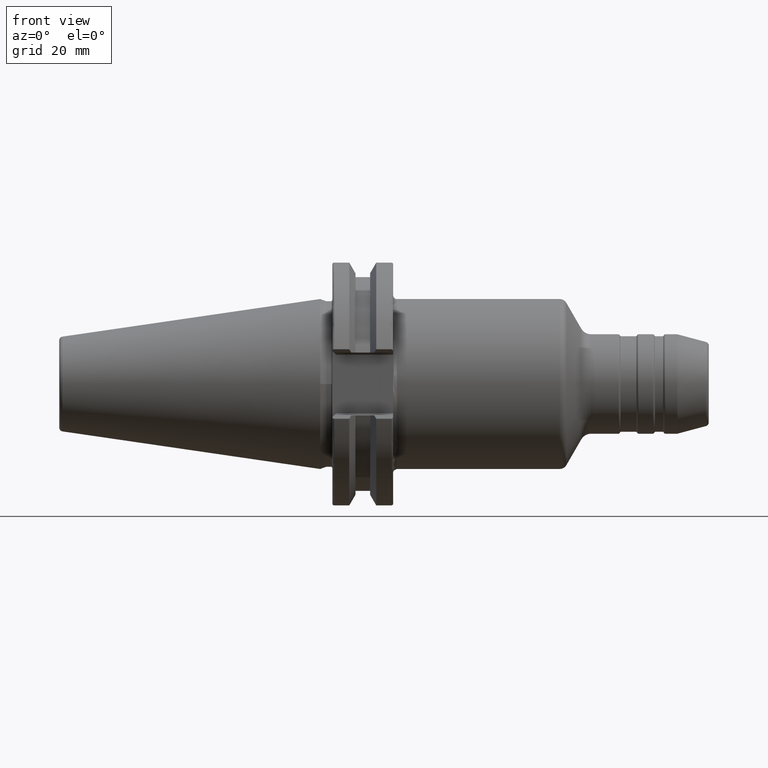
[diagram: clean part render]
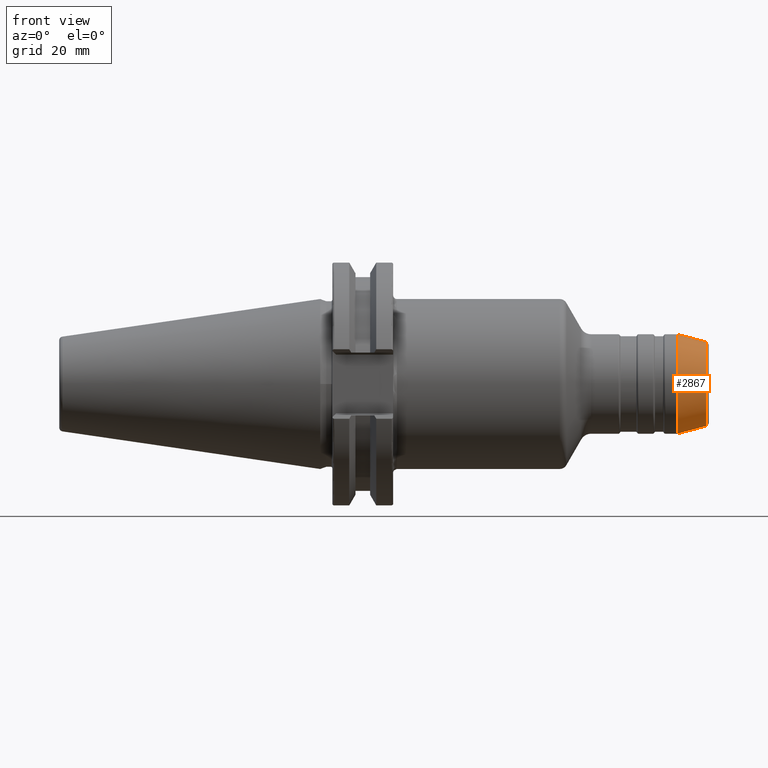
[diagram: same view with one face highlighted and labeled with its STEP entity id]
A machine part, front view. The second image highlights one B-rep face of the part: STEP entity #2867.
In plain terms, the highlighted conical surface has half-angle 15 deg.
Its self-contained STEP definition (entity closure, byte-faithful):
#650=CARTESIAN_POINT('',(9.354165477087E1,0.E0,0.E0));
#651=DIRECTION('',(-1.E0,0.E0,0.E0));
#652=DIRECTION('',(0.E0,0.E0,-1.E0));
#653=AXIS2_PLACEMENT_3D('',#650,#651,#652);
#655=DIRECTION('',(-9.659258262891E-1,0.E0,-2.588190451026E-1));
#656=VECTOR('',#655,7.601167785775E0);
#657=CARTESIAN_POINT('',(1.008838190451E2,0.E0,-1.099859883831E1));
#658=LINE('',#657,#656);
#659=DIRECTION('',(-9.659258262891E-1,0.E0,2.588190451026E-1));
#660=VECTOR('',#659,7.601167785775E0);
#661=CARTESIAN_POINT('',(1.008838190451E2,0.E0,1.099859883831E1));
#662=LINE('',#661,#660);
#663=CARTESIAN_POINT('',(1.008838190451E2,0.E0,0.E0));
#664=DIRECTION('',(-1.E0,0.E0,0.E0));
#665=DIRECTION('',(0.E0,0.E0,-1.E0));
#666=AXIS2_PLACEMENT_3D('',#663,#664,#665);
#1741=CARTESIAN_POINT('',(1.008838190451E2,0.E0,-1.099859883831E1));
#1743=VERTEX_POINT('',#1741);
#1744=CARTESIAN_POINT('',(9.354165477087E1,0.E0,-1.296592582629E1));
#1745=VERTEX_POINT('',#1744);
#1799=CARTESIAN_POINT('',(1.008838190451E2,0.E0,1.099859883831E1));
#1801=VERTEX_POINT('',#1799);
#1802=CARTESIAN_POINT('',(9.354165477087E1,0.E0,1.296592582629E1));
#1803=VERTEX_POINT('',#1802);
#2853=CARTESIAN_POINT('',(9.721273690798E1,0.E0,0.E0));
#2854=DIRECTION('',(-1.E0,0.E0,0.E0));
#2855=DIRECTION('',(0.E0,0.E0,-1.E0));
#2856=AXIS2_PLACEMENT_3D('',#2853,#2854,#2855);
#2857=CONICAL_SURFACE('',#2856,1.198226233230E1,1.5E1);
#2859=ORIENTED_EDGE('',*,*,#2858,.T.);
#2860=ORIENTED_EDGE('',*,*,#2848,.T.);
#2862=ORIENTED_EDGE('',*,*,#2861,.F.);
#2864=ORIENTED_EDGE('',*,*,#2863,.F.);
#2865=EDGE_LOOP('',(#2859,#2860,#2862,#2864));
#2866=FACE_OUTER_BOUND('',#2865,.F.);
#2867=ADVANCED_FACE('',(#2866),#2857,.T.);
#654=CIRCLE('',#653,1.296592582629E1);
#667=CIRCLE('',#666,1.099859883831E1);
#2848=EDGE_CURVE('',#1745,#1803,#654,.T.);
#2858=EDGE_CURVE('',#1743,#1745,#658,.T.);
#2861=EDGE_CURVE('',#1801,#1803,#662,.T.);
#2863=EDGE_CURVE('',#1743,#1801,#667,.T.);